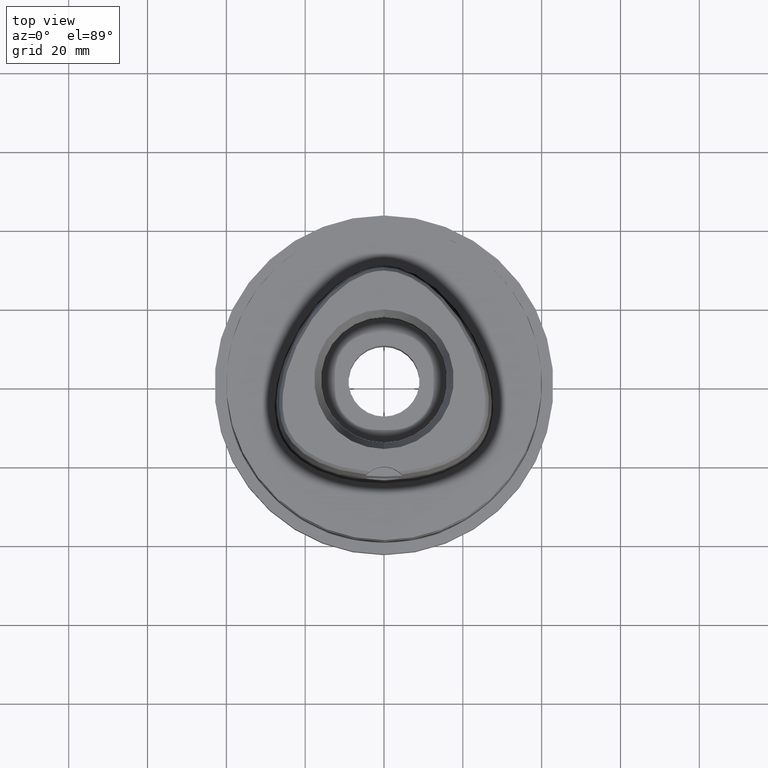
[diagram: clean part render]
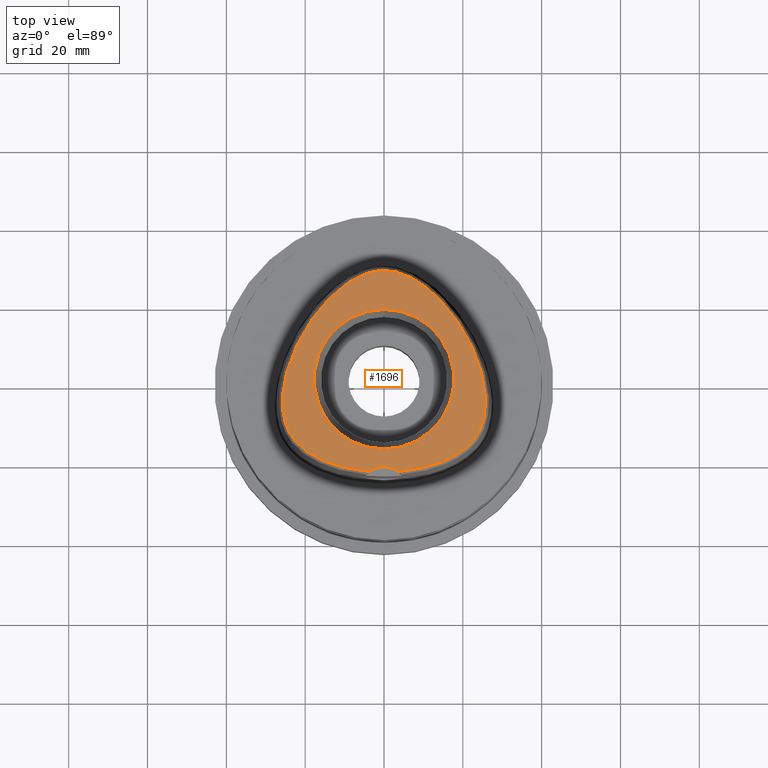
[diagram: same view with one face highlighted and labeled with its STEP entity id]
A machine part, top view. The second image highlights one B-rep face of the part: STEP entity #1696.
In plain terms, the highlighted planar face has unit normal (0, 0, 1).
Its self-contained STEP definition (entity closure, byte-faithful):
#17=CARTESIAN_POINT('',(0.E0,-2.82E1,4.8E1));
#18=DIRECTION('',(0.E0,0.E0,1.E0));
#19=DIRECTION('',(6.087555377261E-1,7.933578607967E-1,0.E0));
#20=AXIS2_PLACEMENT_3D('',#17,#18,#19);
#26=CARTESIAN_POINT('',(-3.652529789307E0,-2.343985019792E1,4.8E1));
#27=CARTESIAN_POINT('',(-4.734205570339E0,-2.335430195373E1,4.8E1));
#28=CARTESIAN_POINT('',(-6.760262944561E0,-2.311574899386E1,4.8E1));
#29=CARTESIAN_POINT('',(-9.359124839607E0,-2.263108975500E1,4.8E1));
#30=CARTESIAN_POINT('',(-1.162459512600E1,-2.205730024582E1,4.8E1));
#31=CARTESIAN_POINT('',(-1.363634555835E1,-2.140963198350E1,4.8E1));
#32=CARTESIAN_POINT('',(-1.546141389707E1,-2.068781868283E1,4.8E1));
#33=CARTESIAN_POINT('',(-1.712985290240E1,-1.988999292557E1,4.8E1));
#34=CARTESIAN_POINT('',(-1.865860952766E1,-1.901417974087E1,4.8E1));
#35=CARTESIAN_POINT('',(-2.009222019339E1,-1.802552687639E1,4.8E1));
#36=CARTESIAN_POINT('',(-2.134857583479E1,-1.697014883617E1,4.8E1));
#37=CARTESIAN_POINT('',(-2.238550675637E1,-1.590794577944E1,4.8E1));
#38=CARTESIAN_POINT('',(-2.323869386737E1,-1.483823184291E1,4.8E1));
#39=CARTESIAN_POINT('',(-2.393764981860E1,-1.375027610158E1,4.8E1));
#40=CARTESIAN_POINT('',(-2.451977055765E1,-1.259366674021E1,4.8E1));
#41=CARTESIAN_POINT('',(-2.501062911112E1,-1.130829954908E1,4.8E1));
#42=CARTESIAN_POINT('',(-2.540300466969E1,-9.859735970111E0,4.8E1));
#43=CARTESIAN_POINT('',(-2.567453261954E1,-8.238099607340E0,4.8E1));
#44=CARTESIAN_POINT('',(-2.580075949787E1,-6.511675877161E0,4.8E1));
#45=CARTESIAN_POINT('',(-2.578335601916E1,-4.731807957849E0,4.8E1));
#46=CARTESIAN_POINT('',(-2.562790680397E1,-2.883865282262E0,4.8E1));
#47=CARTESIAN_POINT('',(-2.532774566733E1,-9.322411352483E-1,4.8E1));
#48=CARTESIAN_POINT('',(-2.486737447707E1,1.148485970487E0,4.8E1));
#49=CARTESIAN_POINT('',(-2.421557640242E1,3.407581995943E0,4.8E1));
#50=CARTESIAN_POINT('',(-2.331164544862E1,5.925773479279E0,4.8E1));
#51=CARTESIAN_POINT('',(-2.206715048034E1,8.772948140689E0,4.8E1));
#52=CARTESIAN_POINT('',(-2.043128364630E1,1.186936942733E1,4.8E1));
#53=CARTESIAN_POINT('',(-1.856158234458E1,1.482577186489E1,4.8E1));
#54=CARTESIAN_POINT('',(-1.672458855755E1,1.730535196379E1,4.8E1));
#55=CARTESIAN_POINT('',(-1.498441067930E1,1.935021095068E1,4.8E1));
#56=CARTESIAN_POINT('',(-1.334903608672E1,2.103807236114E1,4.8E1));
#57=CARTESIAN_POINT('',(-1.179004963289E1,2.245698393461E1,4.8E1));
#58=CARTESIAN_POINT('',(-1.025438339306E1,2.368287979814E1,4.8E1));
#59=CARTESIAN_POINT('',(-8.721784250456E0,2.474144282330E1,4.8E1));
#60=CARTESIAN_POINT('',(-7.183272165450E0,2.564149634915E1,4.8E1));
#61=CARTESIAN_POINT('',(-5.634131723161E0,2.638271879881E1,4.8E1));
#62=CARTESIAN_POINT('',(-4.106108369088E0,2.694725059133E1,4.8E1));
#63=CARTESIAN_POINT('',(-2.658223054312E0,2.732519037832E1,4.8E1));
#64=CARTESIAN_POINT('',(-1.302772597665E0,2.753751982185E1,4.8E1));
#65=CARTESIAN_POINT('',(-4.276663046035E-1,2.758331912251E1,4.8E1));
#66=CARTESIAN_POINT('',(-2.553072305018E-11,2.758331912251E1,4.8E1));
#71=CARTESIAN_POINT('',(-2.553072305018E-11,2.758331912251E1,4.8E1));
#72=CARTESIAN_POINT('',(4.270101877058E-1,2.758331912251E1,4.8E1));
#73=CARTESIAN_POINT('',(1.300717694667E0,2.753778875733E1,4.8E1));
#74=CARTESIAN_POINT('',(2.656950004039E0,2.732525373694E1,4.8E1));
#75=CARTESIAN_POINT('',(4.099080995350E0,2.694971065486E1,4.8E1));
#76=CARTESIAN_POINT('',(5.647677167955E0,2.637782784383E1,4.8E1));
#77=CARTESIAN_POINT('',(7.208710017797E0,2.562775887127E1,4.8E1));
#78=CARTESIAN_POINT('',(8.732658055927E0,2.473411656763E1,4.8E1));
#79=CARTESIAN_POINT('',(1.026498606142E1,2.367516024092E1,4.8E1));
#80=CARTESIAN_POINT('',(1.180207967695E1,2.244653536474E1,4.8E1));
#81=CARTESIAN_POINT('',(1.335326988818E1,2.103374725237E1,4.8E1));
#82=CARTESIAN_POINT('',(1.498853944007E1,1.934576693229E1,4.8E1));
#83=CARTESIAN_POINT('',(1.673669736850E1,1.729111503299E1,4.8E1));
#84=CARTESIAN_POINT('',(1.859392938563E1,1.477968471570E1,4.8E1));
#85=CARTESIAN_POINT('',(2.046379931506E1,1.181268853035E1,4.8E1));
#86=CARTESIAN_POINT('',(2.208764165430E1,8.729462358306E0,4.8E1));
#87=CARTESIAN_POINT('',(2.332376822672E1,5.894585953136E0,4.8E1));
#88=CARTESIAN_POINT('',(2.422292004644E1,3.384967523388E0,4.8E1));
#89=CARTESIAN_POINT('',(2.487486836678E1,1.119527266877E0,4.8E1));
#90=CARTESIAN_POINT('',(2.533203328347E1,-9.563947551430E-1,4.8E1));
#91=CARTESIAN_POINT('',(2.562929806022E1,-2.896586071590E0,4.8E1));
#92=CARTESIAN_POINT('',(2.578403600531E1,-4.744841617955E0,4.8E1));
#93=CARTESIAN_POINT('',(2.580025255815E1,-6.522848991535E0,4.8E1));
#94=CARTESIAN_POINT('',(2.567399519715E1,-8.240837290831E0,4.8E1));
#95=CARTESIAN_POINT('',(2.540305131815E1,-9.859580205664E0,4.8E1));
#96=CARTESIAN_POINT('',(2.501024306350E1,-1.130958862404E1,4.8E1));
#97=CARTESIAN_POINT('',(2.451893622596E1,-1.259588321162E1,4.8E1));
#98=CARTESIAN_POINT('',(2.393420327160E1,-1.375642909188E1,4.8E1));
#99=CARTESIAN_POINT('',(2.323471091377E1,-1.484398431160E1,4.8E1));
#100=CARTESIAN_POINT('',(2.237668475832E1,-1.591796608554E1,4.8E1));
#101=CARTESIAN_POINT('',(2.134065045168E1,-1.697749593150E1,4.8E1));
#102=CARTESIAN_POINT('',(2.008165294022E1,-1.803328345201E1,4.8E1));
#103=CARTESIAN_POINT('',(1.865760823349E1,-1.901468839961E1,4.8E1));
#104=CARTESIAN_POINT('',(1.712252554870E1,-1.989397122835E1,4.8E1));
#105=CARTESIAN_POINT('',(1.545577760200E1,-2.069021507018E1,4.8E1));
#106=CARTESIAN_POINT('',(1.362799282598E1,-2.141268834104E1,4.8E1));
#107=CARTESIAN_POINT('',(1.161670448840E1,-2.205942207922E1,4.8E1));
#108=CARTESIAN_POINT('',(9.358109007593E0,-2.263123078445E1,4.8E1));
#109=CARTESIAN_POINT('',(6.758541883617E0,-2.311603856405E1,4.8E1));
#110=CARTESIAN_POINT('',(4.733721519481E0,-2.335431674493E1,4.8E1));
#111=CARTESIAN_POINT('',(3.652533226355E0,-2.343985283522E1,4.8E1));
#116=CARTESIAN_POINT('',(0.E0,0.E0,4.8E1));
#117=DIRECTION('',(0.E0,0.E0,1.E0));
#118=DIRECTION('',(0.E0,1.E0,0.E0));
#119=AXIS2_PLACEMENT_3D('',#116,#117,#118);
#124=CARTESIAN_POINT('',(0.E0,0.E0,4.8E1));
#125=DIRECTION('',(0.E0,0.E0,1.E0));
#126=DIRECTION('',(0.E0,-1.E0,0.E0));
#127=AXIS2_PLACEMENT_3D('',#124,#125,#126);
#1510=CARTESIAN_POINT('',(3.652533226356E0,-2.343985283522E1,4.8E1));
#1511=CARTESIAN_POINT('',(-3.652529789305E0,-2.343985019792E1,4.8E1));
#1512=VERTEX_POINT('',#1510);
#1513=VERTEX_POINT('',#1511);
#1514=VERTEX_POINT('',#66);
#1515=CARTESIAN_POINT('',(0.E0,1.771487483156E1,4.8E1));
#1516=CARTESIAN_POINT('',(0.E0,-1.771487483156E1,4.8E1));
#1517=VERTEX_POINT('',#1515);
#1518=VERTEX_POINT('',#1516);
#1677=CARTESIAN_POINT('',(0.E0,0.E0,4.8E1));
#1678=DIRECTION('',(0.E0,0.E0,1.E0));
#1679=DIRECTION('',(0.E0,1.E0,0.E0));
#1680=AXIS2_PLACEMENT_3D('',#1677,#1678,#1679);
#1681=PLANE('',#1680);
#1683=ORIENTED_EDGE('',*,*,#1682,.T.);
#1685=ORIENTED_EDGE('',*,*,#1684,.T.);
#1687=ORIENTED_EDGE('',*,*,#1686,.T.);
#1688=EDGE_LOOP('',(#1683,#1685,#1687));
#1689=FACE_OUTER_BOUND('',#1688,.F.);
#1691=ORIENTED_EDGE('',*,*,#1690,.T.);
#1693=ORIENTED_EDGE('',*,*,#1692,.T.);
#1694=EDGE_LOOP('',(#1691,#1693));
#1695=FACE_BOUND('',#1694,.F.);
#21=CIRCLE('',#20,6.E0);
#67=B_SPLINE_CURVE_WITH_KNOTS('',3,(#26,#27,#28,#29,#30,#31,#32,#33,#34,#35,#36,
#37,#38,#39,#40,#41,#42,#43,#44,#45,#46,#47,#48,#49,#50,#51,#52,#53,#54,#55,#56,
#57,#58,#59,#60,#61,#62,#63,#64,#65,#66),.UNSPECIFIED.,.F.,.F.,(4,1,1,1,1,1,1,1,
1,1,1,1,1,1,1,1,1,1,1,1,1,1,1,1,1,1,1,1,1,1,1,1,1,1,1,1,1,1,4),(0.E0,
2.631578947368E-2,5.263157894737E-2,7.894736842105E-2,1.052631578947E-1,
1.315789473684E-1,1.578947368421E-1,1.842105263158E-1,2.105263157895E-1,
2.368421052632E-1,2.631578947368E-1,2.894736842105E-1,3.157894736842E-1,
3.421052631579E-1,3.684210526316E-1,3.947368421053E-1,4.210526315789E-1,
4.473684210526E-1,4.736842105263E-1,5.E-1,5.263157894737E-1,5.526315789474E-1,
5.789473684211E-1,6.052631578947E-1,6.315789473684E-1,6.578947368421E-1,
6.842105263158E-1,7.105263157895E-1,7.368421052632E-1,7.631578947368E-1,
7.894736842105E-1,8.157894736842E-1,8.421052631579E-1,8.684210526316E-1,
8.947368421053E-1,9.210526315789E-1,9.473684210526E-1,9.736842105263E-1,1.E0),
.UNSPECIFIED.);
#112=B_SPLINE_CURVE_WITH_KNOTS('',3,(#71,#72,#73,#74,#75,#76,#77,#78,#79,#80,
#81,#82,#83,#84,#85,#86,#87,#88,#89,#90,#91,#92,#93,#94,#95,#96,#97,#98,#99,
#100,#101,#102,#103,#104,#105,#106,#107,#108,#109,#110,#111),.UNSPECIFIED.,.F.,
.F.,(4,1,1,1,1,1,1,1,1,1,1,1,1,1,1,1,1,1,1,1,1,1,1,1,1,1,1,1,1,1,1,1,1,1,1,1,1,
1,4),(0.E0,2.631578947368E-2,5.263157894737E-2,7.894736842105E-2,
1.052631578947E-1,1.315789473684E-1,1.578947368421E-1,1.842105263158E-1,
2.105263157895E-1,2.368421052632E-1,2.631578947368E-1,2.894736842105E-1,
3.157894736842E-1,3.421052631579E-1,3.684210526316E-1,3.947368421053E-1,
4.210526315789E-1,4.473684210526E-1,4.736842105263E-1,5.E-1,5.263157894737E-1,
5.526315789474E-1,5.789473684211E-1,6.052631578947E-1,6.315789473684E-1,
6.578947368421E-1,6.842105263158E-1,7.105263157895E-1,7.368421052632E-1,
7.631578947368E-1,7.894736842105E-1,8.157894736842E-1,8.421052631579E-1,
8.684210526316E-1,8.947368421053E-1,9.210526315789E-1,9.473684210526E-1,
9.736842105263E-1,1.E0),.UNSPECIFIED.);
#120=CIRCLE('',#119,1.771487483156E1);
#128=CIRCLE('',#127,1.771487483156E1);
#1682=EDGE_CURVE('',#1512,#1513,#21,.T.);
#1684=EDGE_CURVE('',#1513,#1514,#67,.T.);
#1686=EDGE_CURVE('',#1514,#1512,#112,.T.);
#1690=EDGE_CURVE('',#1517,#1518,#120,.T.);
#1692=EDGE_CURVE('',#1518,#1517,#128,.T.);
#1696=ADVANCED_FACE('',(#1689,#1695),#1681,.T.);